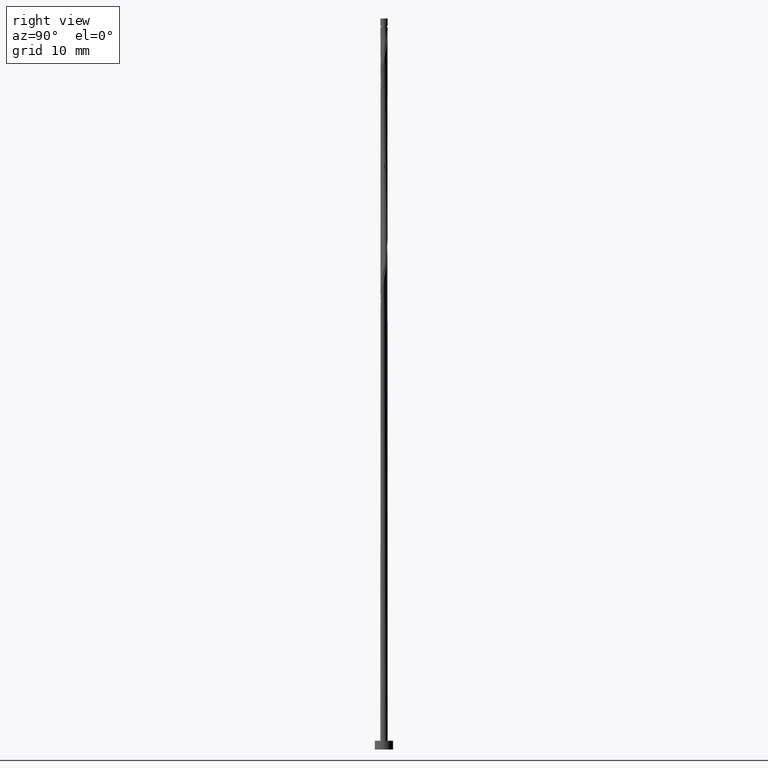
[diagram: clean part render]
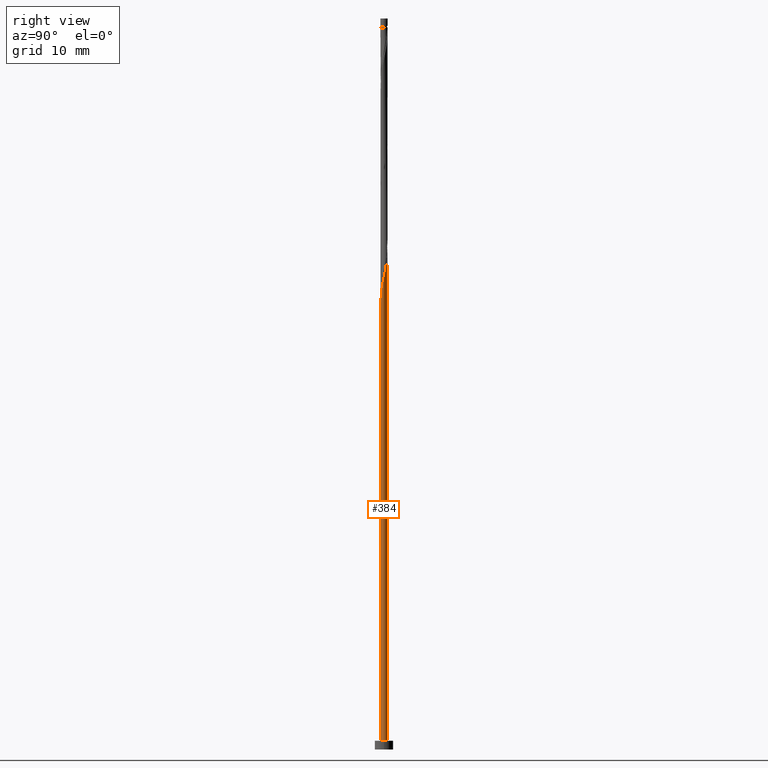
[diagram: same view with one face highlighted and labeled with its STEP entity id]
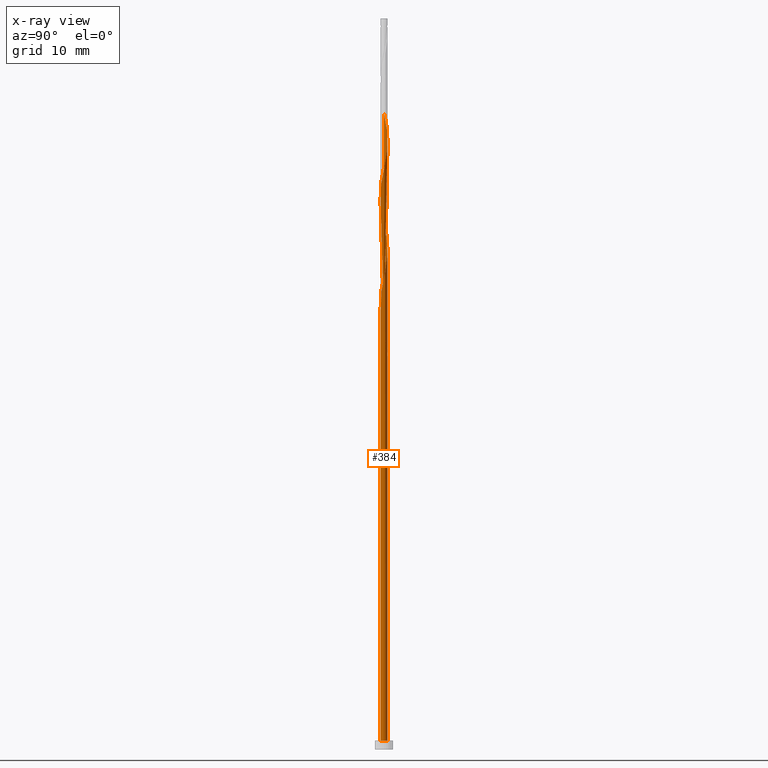
[diagram: x-ray of the same camera — body ghosted, the highlighted face saturated]
A machine part, right view. The second image highlights one B-rep face of the part: STEP entity #384.
The next image is the same camera in x-ray: the body ghosted, the highlighted face saturated — about 0% of this face is hidden behind the body in this view.
In plain terms, the highlighted cylindrical surface (bore or boss wall) has radius 0.5 mm, axis along (-0, -0, -1).
Its self-contained STEP definition (entity closure, byte-faithful):
#4 = CARTESIAN_POINT ( 'NONE',  ( 0.4975590398240160028, 0.1010336722130053960, 80.04999999999998295 ) ) ;
#5 = VECTOR ( 'NONE', #58, 1000.000000000000000 ) ;
#12 = CARTESIAN_POINT ( 'NONE',  ( -0.4329970070769388890, -0.2651158103430555912, 73.38333333333331154 ) ) ;
#17 = CARTESIAN_POINT ( 'NONE',  ( -0.5000000000000007772, 5.434049081432574150E-16, 57.07223060051013164 ) ) ;
#20 = CARTESIAN_POINT ( 'NONE',  ( 0.4329970070769391111, 0.2651158103430553137, 65.88333333333333997 ) ) ;
#24 = CARTESIAN_POINT ( 'NONE',  ( 0.1858989642578097734, -0.4724556869372145695, 76.71666666666665435 ) ) ;
#25 = AXIS2_PLACEMENT_3D ( 'NONE', #666, #365, #252 ) ;
#37 = CARTESIAN_POINT ( 'NONE',  ( -0.5000000000000000000, 0.000000000000000000, 100.0000000000000000 ) ) ;
#42 = DIRECTION ( 'NONE',  ( 1.000000000000000000, 0.000000000000000000, 0.000000000000000000 ) ) ;
#46 = CARTESIAN_POINT ( 'NONE',  ( -0.1858989642578099122, 0.4724556869372144030, 84.21666666666665435 ) ) ;
#57 = ORIENTED_EDGE ( 'NONE', *, *, #446, .F. ) ;
#58 = DIRECTION ( 'NONE',  ( -0.000000000000000000, -0.000000000000000000, -1.000000000000000000 ) ) ;
#61 = CARTESIAN_POINT ( 'NONE',  ( -0.2387454690295328086, 0.4393183367648896831, 55.46666666666666856 ) ) ;
#63 = CARTESIAN_POINT ( 'NONE',  ( -0.3911863884632766908, 0.3114052174917099070, 55.46666666666667567 ) ) ;
#76 = DIRECTION ( 'NONE',  ( 0.000000000000000000, -0.000000000000000000, -1.000000000000000000 ) ) ;
#98 = EDGE_CURVE ( 'NONE', #430, #1158, #402, .T. ) ;
#112 = CARTESIAN_POINT ( 'NONE',  ( -0.07409163498720072738, -0.4944799587697403798, 75.46666666666666856 ) ) ;
#119 = CARTESIAN_POINT ( 'NONE',  ( 0.4741018197097065512, -0.1588315603019302691, 63.79999999999999716 ) ) ;
#124 = CARTESIAN_POINT ( 'NONE',  ( -0.1612817931379152137, -0.4814156044766937370, 75.05000000000001137 ) ) ;
#128 = CARTESIAN_POINT ( 'NONE',  ( 0.4652780234504774182, 0.1830747412780303895, 80.46666666666668277 ) ) ;
#135 = CARTESIAN_POINT ( 'NONE',  ( -0.01309852316351389420, 0.5075443130627871335, 68.38333333333332575 ) ) ;
#136 = CARTESIAN_POINT ( 'NONE',  ( -0.09949874371066178003, 0.4900000000000008793, 53.79999999999999716 ) ) ;
#149 = CARTESIAN_POINT ( 'NONE',  ( -0.4460955302404527867, 0.2424285027197316256, 55.88333333333333997 ) ) ;
#156 = CARTESIAN_POINT ( 'NONE',  ( 0.5000000000000000000, 0.000000000000000000, 1.199999999999999956 ) ) ;
#158 = CARTESIAN_POINT ( 'NONE',  ( -0.5000000000000011102, 0.08152718591022742323, 86.68530303938103998 ) ) ;
#165 = CARTESIAN_POINT ( 'NONE',  ( -0.07409163498720063024, 0.4944799587697402687, 54.63333333333333286 ) ) ;
#187 = ORIENTED_EDGE ( 'NONE', *, *, #446, .T. ) ;
#210 = CARTESIAN_POINT ( 'NONE',  ( 0.4652780234504774182, 0.1830747412780303895, 65.46666666666666856 ) ) ;
#216 = CARTESIAN_POINT ( 'NONE',  ( -0.4998335745014880205, -0.01289952716443847763, 72.13333333333333997 ) ) ;
#221 = CARTESIAN_POINT ( 'NONE',  ( -0.4975590398240158918, 0.1010336722130055070, 57.55000000000001137 ) ) ;
#223 = CARTESIAN_POINT ( 'NONE',  ( -0.3162091449211504868, -0.3972210690530860178, 59.21666666666666856 ) ) ;
#231 = CARTESIAN_POINT ( 'NONE',  ( 0.3362772466861005394, -0.3803819322636883271, 77.54999999999999716 ) ) ;
#237 = CARTESIAN_POINT ( 'NONE',  ( -0.4329970070769388890, -0.2651158103430555912, 58.38333333333332575 ) ) ;
#252 = DIRECTION ( 'NONE',  ( -1.000000000000000000, 0.000000000000000000, 0.000000000000000000 ) ) ;
#260 = FACE_OUTER_BOUND ( 'NONE', #499, .T. ) ;
#269 = CARTESIAN_POINT ( 'NONE',  ( -0.2610881054719552674, 0.4264188096004513095, 84.63333333333332575 ) ) ;
#289 = ORIENTED_EDGE ( 'NONE', *, *, #1263, .T. ) ;
#308 = CARTESIAN_POINT ( 'NONE',  ( 0.1612817931379155190, 0.4814156044766936260, 82.55000000000001137 ) ) ;
#316 = CARTESIAN_POINT ( 'NONE',  ( 0.09949874371066182166, -0.4900000000000008238, 76.30000000000002558 ) ) ;
#323 = CARTESIAN_POINT ( 'NONE',  ( 0.4975590398240160028, 0.1010336722130053960, 65.04999999999999716 ) ) ;
#330 = CARTESIAN_POINT ( 'NONE',  ( 0.3362772466861005394, -0.3803819322636883271, 62.55000000000001137 ) ) ;
#336 = CARTESIAN_POINT ( 'NONE',  ( 0.2387454690295330029, 0.4393183367648896831, 82.13333333333335418 ) ) ;
#338 = CARTESIAN_POINT ( 'NONE',  ( -0.5000000000000007772, -9.803696796398973244E-17, 87.07223060051012453 ) ) ;
#342 = CARTESIAN_POINT ( 'NONE',  ( -0.5000000000000007772, 5.434049081432574150E-16, 57.07223060051013164 ) ) ;
#360 = CARTESIAN_POINT ( 'NONE',  ( -0.4741018197097065512, 0.1588315603019300748, 56.30000000000001137 ) ) ;
#365 = DIRECTION ( 'NONE',  ( -0.000000000000000000, -0.000000000000000000, -1.000000000000000000 ) ) ;
#377 = ORIENTED_EDGE ( 'NONE', *, *, #1221, .F. ) ;
#384 = ADVANCED_FACE ( 'NONE', ( #260 ), #865, .T. ) ;
#402 = CIRCLE ( 'NONE', #965, 0.5000000000000000000 ) ;
#403 = VERTEX_POINT ( 'NONE', #455 ) ;
#408 = CARTESIAN_POINT ( 'NONE',  ( 0.4460955302404527867, -0.2424285027197316811, 78.38333333333333997 ) ) ;
#414 = CARTESIAN_POINT ( 'NONE',  ( -0.07409163498720072738, -0.4944799587697403798, 60.46666666666666146 ) ) ;
#421 = CARTESIAN_POINT ( 'NONE',  ( -0.3746030759990447989, -0.3311684396980705825, 73.80000000000001137 ) ) ;
#427 = CARTESIAN_POINT ( 'NONE',  ( 0.1858989642578097734, -0.4724556869372145695, 61.71666666666666146 ) ) ;
#430 = VERTEX_POINT ( 'NONE', #156 ) ;
#434 = CARTESIAN_POINT ( 'NONE',  ( -0.09949874371066179390, 0.4900000000000008238, 68.79999999999996874 ) ) ;
#446 = EDGE_CURVE ( 'NONE', #704, #1158, #1109, .T. ) ;
#455 = CARTESIAN_POINT ( 'NONE',  ( -0.5000000000000006661, -4.855164127740446616E-16, 58.02776939948987689 ) ) ;
#459 = CARTESIAN_POINT ( 'NONE',  ( -0.5000000000000000000, 0.000000000000000000, 100.0000000000000000 ) ) ;
#463 = CARTESIAN_POINT ( 'NONE',  ( -0.5000000000000007772, 0.08152718591022869998, 56.68530303938106840 ) ) ;
#472 = CARTESIAN_POINT ( 'NONE',  ( -0.3362772466861007059, 0.3803819322636883271, 55.05000000000001137 ) ) ;
#486 = VERTEX_POINT ( 'NONE', #136 ) ;
#493 = DIRECTION ( 'NONE',  ( 0.000000000000000000, 0.000000000000000000, 1.000000000000000000 ) ) ;
#499 = EDGE_LOOP ( 'NONE', ( #1078, #377, #187, #289, #1343, #57, #1360, #588, #768 ) ) ;
#518 = CARTESIAN_POINT ( 'NONE',  ( 0.09949874371066182166, -0.4900000000000008238, 61.29999999999999716 ) ) ;
#526 = CARTESIAN_POINT ( 'NONE',  ( -0.3911863884632766908, 0.3114052174917099070, 70.46666666666668277 ) ) ;
#529 = CARTESIAN_POINT ( 'NONE',  ( 0.5021081091789604267, -0.07523461788412882933, 79.21666666666668277 ) ) ;
#532 = CARTESIAN_POINT ( 'NONE',  ( -0.2387454690295328918, -0.4393183367648896831, 59.63333333333333286 ) ) ;
#540 = CARTESIAN_POINT ( 'NONE',  ( -0.4460955302404527867, 0.2424285027197316256, 70.88333333333332575 ) ) ;
#571 = CARTESIAN_POINT ( 'NONE',  ( -0.09949874371066179390, 0.4900000000000008793, 53.79999999999999716 ) ) ;
#581 = CARTESIAN_POINT ( 'NONE',  ( 0.000000000000000000, 0.000000000000000000, 1.199999999999999956 ) ) ;
#582 = CARTESIAN_POINT ( 'NONE',  ( -0.1612817931379151581, 0.4814156044766936260, 55.04999999999999716 ) ) ;
#583 = EDGE_CURVE ( 'NONE', #403, #1032, #1075, .T. ) ;
#588 = ORIENTED_EDGE ( 'NONE', *, *, #1361, .T. ) ;
#620 = CARTESIAN_POINT ( 'NONE',  ( 0.4460955302404527867, -0.2424285027197316811, 63.38333333333333286 ) ) ;
#628 = CARTESIAN_POINT ( 'NONE',  ( 0.3746030759990447989, 0.3311684396980708045, 66.29999999999998295 ) ) ;
#633 = CARTESIAN_POINT ( 'NONE',  ( -0.4652780234504771961, 0.1830747412780305838, 57.13333333333332575 ) ) ;
#635 = CARTESIAN_POINT ( 'NONE',  ( -0.4741018197097065512, 0.1588315603019300748, 71.30000000000002558 ) ) ;
#642 = CARTESIAN_POINT ( 'NONE',  ( 0.4998335745014880205, 0.01289952716443851580, 79.63333333333333997 ) ) ;
#649 = CARTESIAN_POINT ( 'NONE',  ( -0.4975590398240160028, -0.1010336722130054932, 57.54999999999999716 ) ) ;
#653 = CARTESIAN_POINT ( 'NONE',  ( -0.3746030759990446324, 0.3311684396980706935, 56.29999999999999716 ) ) ;
#663 = CARTESIAN_POINT ( 'NONE',  ( -0.5000000000000006661, -4.855164127740446616E-16, 58.02776939948987689 ) ) ;
#666 = CARTESIAN_POINT ( 'NONE',  ( 0.000000000000000000, 0.000000000000000000, 100.0000000000000000 ) ) ;
#671 = DIRECTION ( 'NONE',  ( -0.000000000000000000, -0.000000000000000000, -1.000000000000000000 ) ) ;
#674 = CARTESIAN_POINT ( 'NONE',  ( -0.3362772466861007059, 0.3803819322636883271, 85.04999999999998295 ) ) ;
#697 = CARTESIAN_POINT ( 'NONE',  ( 0.01309852316351392196, 0.5075443130627870225, 54.21666666666666146 ) ) ;
#704 = VERTEX_POINT ( 'NONE', #1007 ) ;
#727 = AXIS2_PLACEMENT_3D ( 'NONE', #916, #76, #1044 ) ;
#731 = CARTESIAN_POINT ( 'NONE',  ( -0.01309852316351389420, 0.5075443130627871335, 83.38333333333332575 ) ) ;
#738 = CARTESIAN_POINT ( 'NONE',  ( 0.07409163498720100494, 0.4944799587697403798, 82.96666666666666856 ) ) ;
#744 = CARTESIAN_POINT ( 'NONE',  ( -0.5000000000000005551, 0.006450837166012286447, 57.99715376295075231 ) ) ;
#746 = CARTESIAN_POINT ( 'NONE',  ( 0.2610881054719552119, -0.4264188096004513095, 77.13333333333329733 ) ) ;
#751 = CARTESIAN_POINT ( 'NONE',  ( -0.3162091449211504868, -0.3972210690530860178, 74.21666666666671119 ) ) ;
#755 = CARTESIAN_POINT ( 'NONE',  ( 0.2610881054719552119, -0.4264188096004513095, 62.13333333333333997 ) ) ;
#768 = ORIENTED_EDGE ( 'NONE', *, *, #583, .F. ) ;
#783 =( BOUNDED_CURVE ( )  B_SPLINE_CURVE ( 2, ( #571, #1108, #1009, #472, #63, #149, #360, #463, #342 ),
 .UNSPECIFIED., .F., .T. ) 
 B_SPLINE_CURVE_WITH_KNOTS ( ( 3, 2, 2, 2, 3 ),
 ( 0.000000000000000000, 0.01388888888888883955, 0.02777777777777779011, 0.04166666666666662966, 0.05452480538552906958 ),
 .UNSPECIFIED. ) 
 CURVE ( )  GEOMETRIC_REPRESENTATION_ITEM ( )  RATIONAL_B_SPLINE_CURVE ( ( 0.9090909090909153889, 0.8952797754656498519, 0.9090909090909153889, 0.8952797754656498519, 0.9090909090909153889, 0.8952797754656498519, 0.9090909090909153889, 0.8963047551055899342, 0.9071930855141276950 ) ) 
 REPRESENTATION_ITEM ( '' )  );
#795 = CIRCLE ( 'NONE', #727, 0.5000000000000000000 ) ;
#840 = CARTESIAN_POINT ( 'NONE',  ( 0.3746030759990447989, 0.3311684396980708045, 81.29999999999999716 ) ) ;
#848 = CARTESIAN_POINT ( 'NONE',  ( 0.07409163498720100494, 0.4944799587697403798, 67.96666666666666856 ) ) ;
#854 = CARTESIAN_POINT ( 'NONE',  ( 0.01309852316351374675, -0.5075443130627872446, 75.88333333333333997 ) ) ;
#861 = CARTESIAN_POINT ( 'NONE',  ( 0.2387454690295330029, 0.4393183367648896831, 67.13333333333333997 ) ) ;
#864 = CARTESIAN_POINT ( 'NONE',  ( -0.2610881054719552674, 0.4264188096004513095, 69.63333333333335418 ) ) ;
#865 = CYLINDRICAL_SURFACE ( 'NONE', #25, 0.5000000000000000000 ) ;
#875 = CARTESIAN_POINT ( 'NONE',  ( -0.4460955302404527867, 0.2424285027197316256, 85.88333333333335418 ) ) ;
#877 = CARTESIAN_POINT ( 'NONE',  ( 0.09949874371066201595, 0.4900000000000007683, 53.79999999999999716 ) ) ;
#888 = EDGE_CURVE ( 'NONE', #486, #704, #783, .T. ) ;
#903 = AXIS2_PLACEMENT_3D ( 'NONE', #1294, #1123, #42 ) ;
#916 = CARTESIAN_POINT ( 'NONE',  ( 0.000000000000000000, 0.000000000000000000, 53.80000000000000426 ) ) ;
#925 = DIRECTION ( 'NONE',  ( 1.000000000000000000, 0.000000000000000000, 0.000000000000000000 ) ) ;
#949 = CARTESIAN_POINT ( 'NONE',  ( -0.2387454690295328918, -0.4393183367648896831, 74.63333333333331154 ) ) ;
#958 = CARTESIAN_POINT ( 'NONE',  ( 0.01309852316351374675, -0.5075443130627872446, 60.88333333333334707 ) ) ;
#961 = CARTESIAN_POINT ( 'NONE',  ( -0.4998335745014880205, -0.01289952716443847763, 57.13333333333333997 ) ) ;
#964 = CARTESIAN_POINT ( 'NONE',  ( 0.3162091449211505423, 0.3972210690530860178, 66.71666666666666856 ) ) ;
#965 = AXIS2_PLACEMENT_3D ( 'NONE', #581, #493, #925 ) ;
#968 = CARTESIAN_POINT ( 'NONE',  ( 0.4329970070769391111, 0.2651158103430553137, 80.88333333333332575 ) ) ;
#977 = CARTESIAN_POINT ( 'NONE',  ( -0.5000000000000007772, -9.803696796398973244E-17, 87.07223060051012453 ) ) ;
#1007 = CARTESIAN_POINT ( 'NONE',  ( -0.5000000000000007772, 5.434049081432574150E-16, 57.07223060051013164 ) ) ;
#1009 = CARTESIAN_POINT ( 'NONE',  ( -0.2610881054719552674, 0.4264188096004513095, 54.63333333333332575 ) ) ;
#1024 = CARTESIAN_POINT ( 'NONE',  ( -0.5000000000000000000, 0.000000000000000000, 1.199999999999999956 ) ) ;
#1028 = CARTESIAN_POINT ( 'NONE',  ( 0.09949874371066202983, 0.4900000000000007683, 53.79999999999999716 ) ) ;
#1032 = VERTEX_POINT ( 'NONE', #877 ) ;
#1044 = DIRECTION ( 'NONE',  ( -1.000000000000000000, 0.000000000000000000, 0.000000000000000000 ) ) ;
#1060 = CARTESIAN_POINT ( 'NONE',  ( -0.5021081091789604267, 0.07523461788412853790, 71.71666666666666856 ) ) ;
#1067 = CARTESIAN_POINT ( 'NONE',  ( -0.3362772466861007059, 0.3803819322636883271, 70.04999999999998295 ) ) ;
#1072 = CARTESIAN_POINT ( 'NONE',  ( -0.4329970070769387780, 0.2651158103430555912, 56.71666666666666856 ) ) ;
#1074 = CARTESIAN_POINT ( 'NONE',  ( -0.4975590398240160028, -0.1010336722130054932, 72.55000000000001137 ) ) ;
#1075 =( BOUNDED_CURVE ( )  B_SPLINE_CURVE ( 2, ( #663, #744, #1102, #221, #633, #1072, #653, #1342, #61, #582, #165, #697, #1028 ),
 .UNSPECIFIED., .F., .T. ) 
 B_SPLINE_CURVE_WITH_KNOTS ( ( 3, 2, 2, 2, 2, 2, 3 ),
 ( 0.9295248053855293957, 0.9305555555555555802, 0.9444444444444444198, 0.9583333333333333703, 0.9722222222222222099, 0.9861111111111111605, 1.000000000000000000 ),
 .UNSPECIFIED. ) 
 CURVE ( )  GEOMETRIC_REPRESENTATION_ITEM ( )  RATIONAL_B_SPLINE_CURVE ( ( 0.9071930855141279171, 0.9080659294509753066, 0.9090909090909150558, 0.8952797754656496299, 0.9090909090909150558, 0.8952797754656496299, 0.9090909090909150558, 0.8952797754656496299, 0.9090909090909150558, 0.8952797754656496299, 0.9090909090909150558, 0.8952797754656496299, 0.9090909090909150558 ) ) 
 REPRESENTATION_ITEM ( '' )  );
#1078 = ORIENTED_EDGE ( 'NONE', *, *, #1296, .F. ) ;
#1082 = CARTESIAN_POINT ( 'NONE',  ( -0.4652780234504773071, -0.1830747412780305006, 57.96666666666666146 ) ) ;
#1088 = CARTESIAN_POINT ( 'NONE',  ( 0.3911863884632766908, -0.3114052174917099070, 62.96666666666668277 ) ) ;
#1102 = CARTESIAN_POINT ( 'NONE',  ( -0.4998335745014880205, 0.01289952716443853141, 57.96666666666667567 ) ) ;
#1106 = LINE ( 'NONE', #459, #5 ) ;
#1108 = CARTESIAN_POINT ( 'NONE',  ( -0.1858989642578099122, 0.4724556869372144030, 54.21666666666667567 ) ) ;
#1109 = LINE ( 'NONE', #37, #1327 ) ;
#1123 = DIRECTION ( 'NONE',  ( 0.000000000000000000, 0.000000000000000000, 1.000000000000000000 ) ) ;
#1130 = VERTEX_POINT ( 'NONE', #338 ) ;
#1138 = CIRCLE ( 'NONE', #903, 0.5000000000000000000 ) ;
#1158 = VERTEX_POINT ( 'NONE', #1024 ) ;
#1168 = CARTESIAN_POINT ( 'NONE',  ( -0.09949874371066179390, 0.4900000000000008238, 83.80000000000002558 ) ) ;
#1174 = CARTESIAN_POINT ( 'NONE',  ( -0.1858989642578099122, 0.4724556869372144030, 69.21666666666666856 ) ) ;
#1179 = CARTESIAN_POINT ( 'NONE',  ( 0.3162091449211505423, 0.3972210690530860178, 81.71666666666665435 ) ) ;
#1184 = CARTESIAN_POINT ( 'NONE',  ( 0.1612817931379155190, 0.4814156044766936260, 67.54999999999999716 ) ) ;
#1190 = CARTESIAN_POINT ( 'NONE',  ( 0.4998335745014880205, 0.01289952716443851580, 64.63333333333333997 ) ) ;
#1204 = CARTESIAN_POINT ( 'NONE',  ( -0.4741018197097065512, 0.1588315603019300748, 86.29999999999999716 ) ) ;
#1220 = CARTESIAN_POINT ( 'NONE',  ( -0.3911863884632766908, 0.3114052174917099070, 85.46666666666666856 ) ) ;
#1221 = EDGE_CURVE ( 'NONE', #704, #1130, #1350, .T. ) ;
#1263 = EDGE_CURVE ( 'NONE', #1158, #430, #1138, .T. ) ;
#1264 = CARTESIAN_POINT ( 'NONE',  ( 0.4741018197097065512, -0.1588315603019302691, 78.80000000000001137 ) ) ;
#1270 = CARTESIAN_POINT ( 'NONE',  ( -0.3746030759990447989, -0.3311684396980705825, 58.80000000000001137 ) ) ;
#1277 = CARTESIAN_POINT ( 'NONE',  ( 0.5021081091789604267, -0.07523461788412882933, 64.21666666666666856 ) ) ;
#1282 = CARTESIAN_POINT ( 'NONE',  ( -0.5000000000000007772, -0.006450837166010229932, 57.10284623704924911 ) ) ;
#1283 = CARTESIAN_POINT ( 'NONE',  ( -0.4652780234504773071, -0.1830747412780305006, 72.96666666666665435 ) ) ;
#1289 = CARTESIAN_POINT ( 'NONE',  ( 0.3911863884632766908, -0.3114052174917099070, 77.96666666666665435 ) ) ;
#1294 = CARTESIAN_POINT ( 'NONE',  ( 0.000000000000000000, 0.000000000000000000, 1.199999999999999956 ) ) ;
#1296 = EDGE_CURVE ( 'NONE', #1130, #403, #1106, .T. ) ;
#1327 = VECTOR ( 'NONE', #671, 1000.000000000000000 ) ;
#1342 = CARTESIAN_POINT ( 'NONE',  ( -0.3162091449211504313, 0.3972210690530858512, 55.88333333333333286 ) ) ;
#1343 = ORIENTED_EDGE ( 'NONE', *, *, #98, .T. ) ;
#1350 =( BOUNDED_CURVE ( )  B_SPLINE_CURVE ( 2, ( #17, #1282, #961, #649, #1082, #237, #1270, #223, #532, #1365, #414, #958, #518, #427, #755, #330, #1088, #620, #119, #1277, #1190, #323, #210, #20, #628, #964, #861, #1184, #848, #135, #434, #1174, #864, #1067, #526, #540, #635, #1060, #216, #1074, #1283, #12, #421, #751, #949, #124, #112, #854, #316, #24, #746, #231, #1289, #408, #1264, #529, #642, #4, #128, #968, #840, #1179, #336, #308, #738, #731, #1168, #46, #269, #674, #1220, #875, #1204, #158, #977 ),
 .UNSPECIFIED., .F., .T. ) 
 B_SPLINE_CURVE_WITH_KNOTS ( ( 3, 2, 2, 2, 2, 2, 2, 2, 2, 2, 2, 2, 2, 2, 2, 2, 2, 2, 2, 2, 2, 2, 2, 2, 2, 2, 2, 2, 2, 2, 2, 2, 2, 2, 2, 2, 2, 3 ),
 ( 0.05452480538552907652, 0.05555555555555558023, 0.06944444444444441977, 0.08333333333333337034, 0.09722222222222220989, 0.1111111111111111605, 0.1250000000000000000, 0.1388888888888888395, 0.1527777777777777901, 0.1666666666666666297, 0.1805555555555555802, 0.1944444444444444198, 0.2083333333333333703, 0.2222222222222222099, 0.2361111111111111605, 0.2500000000000000000, 0.2638888888888888395, 0.2777777777777777901, 0.2916666666666666297, 0.3055555555555555802, 0.3194444444444444198, 0.3333333333333333703, 0.3472222222222222099, 0.3611111111111111605, 0.3750000000000000000, 0.3888888888888888395, 0.4027777777777777901, 0.4166666666666666297, 0.4305555555555555802, 0.4444444444444444198, 0.4583333333333333703, 0.4722222222222222099, 0.4861111111111111605, 0.5000000000000000000, 0.5138888888888888395, 0.5277777777777777901, 0.5416666666666667407, 0.5545248053855292847 ),
 .UNSPECIFIED. ) 
 CURVE ( )  GEOMETRIC_REPRESENTATION_ITEM ( )  RATIONAL_B_SPLINE_CURVE ( ( 0.9071930855141276950, 0.9080659294509753066, 0.9090909090909153889, 0.8952797754656498519, 0.9090909090909153889, 0.8952797754656498519, 0.9090909090909153889, 0.8952797754656498519, 0.9090909090909153889, 0.8952797754656498519, 0.9090909090909153889, 0.8952797754656498519, 0.9090909090909153889, 0.8952797754656498519, 0.9090909090909153889, 0.8952797754656498519, 0.9090909090909153889, 0.8952797754656498519, 0.9090909090909153889, 0.8952797754656498519, 0.9090909090909153889, 0.8952797754656498519, 0.9090909090909153889, 0.8952797754656498519, 0.9090909090909153889, 0.8952797754656498519, 0.9090909090909153889, 0.8952797754656498519, 0.9090909090909153889, 0.8952797754656498519, 0.9090909090909153889, 0.8952797754656498519, 0.9090909090909153889, 0.8952797754656498519, 0.9090909090909153889, 0.8952797754656498519, 0.9090909090909153889, 0.8952797754656498519, 0.9090909090909153889, 0.8952797754656498519, 0.9090909090909153889, 0.8952797754656498519, 0.9090909090909153889, 0.8952797754656498519, 0.9090909090909153889, 0.8952797754656498519, 0.9090909090909153889, 0.8952797754656498519, 0.9090909090909153889, 0.8952797754656498519, 0.9090909090909153889, 0.8952797754656498519, 0.9090909090909153889, 0.8952797754656498519, 0.9090909090909153889, 0.8952797754656498519, 0.9090909090909153889, 0.8952797754656498519, 0.9090909090909153889, 0.8952797754656498519, 0.9090909090909153889, 0.8952797754656498519, 0.9090909090909153889, 0.8952797754656498519, 0.9090909090909153889, 0.8952797754656498519, 0.9090909090909153889, 0.8952797754656498519, 0.9090909090909153889, 0.8952797754656498519, 0.9090909090909153889, 0.8952797754656498519, 0.9090909090909153889, 0.8963047551055898232, 0.9071930855141279171 ) ) 
 REPRESENTATION_ITEM ( '' )  );
#1360 = ORIENTED_EDGE ( 'NONE', *, *, #888, .F. ) ;
#1361 = EDGE_CURVE ( 'NONE', #486, #1032, #795, .T. ) ;
#1365 = CARTESIAN_POINT ( 'NONE',  ( -0.1612817931379152137, -0.4814156044766937370, 60.04999999999999716 ) ) ;